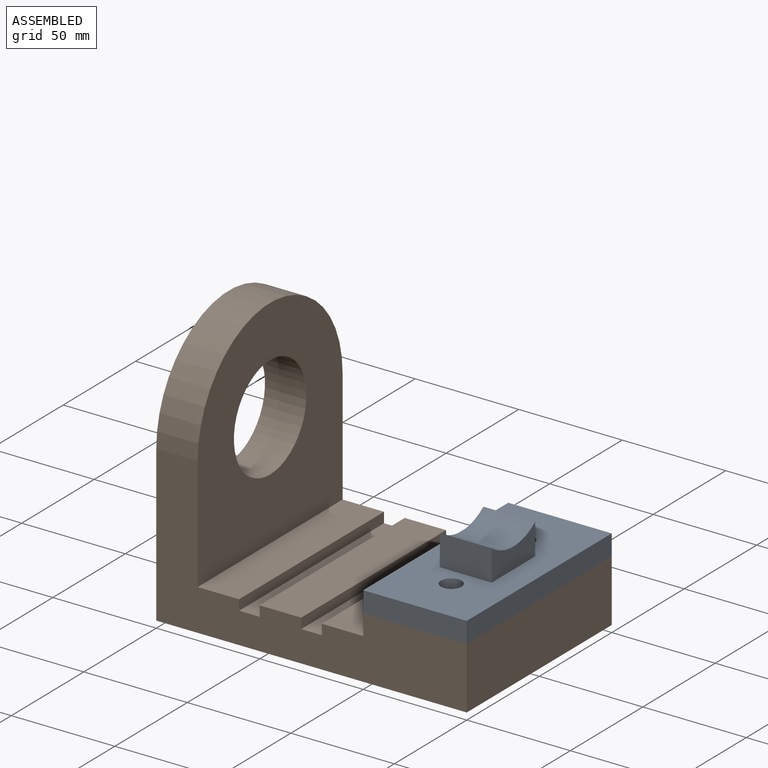
[diagram: assembled view]
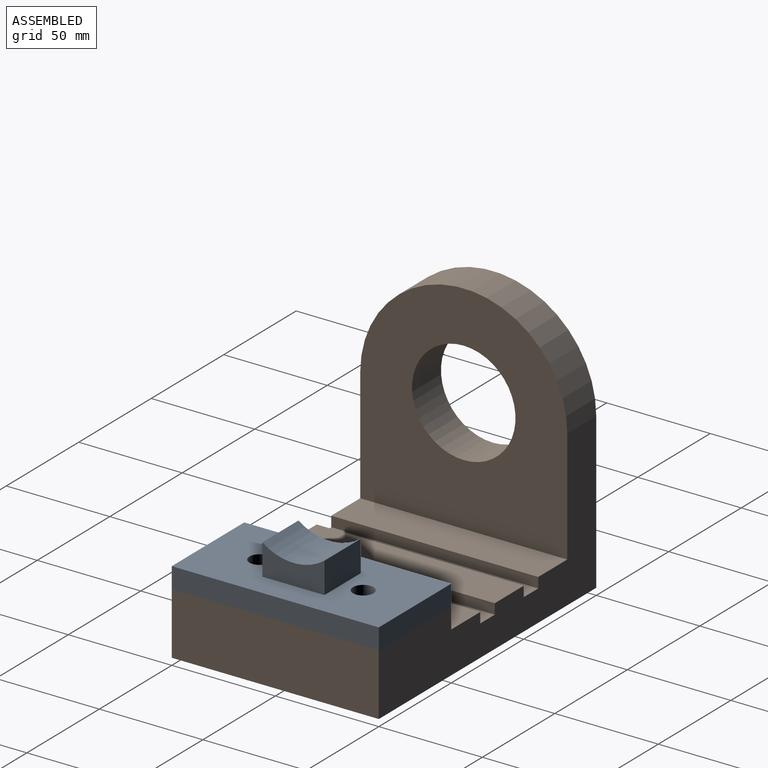
[diagram: assembled view, second angle]
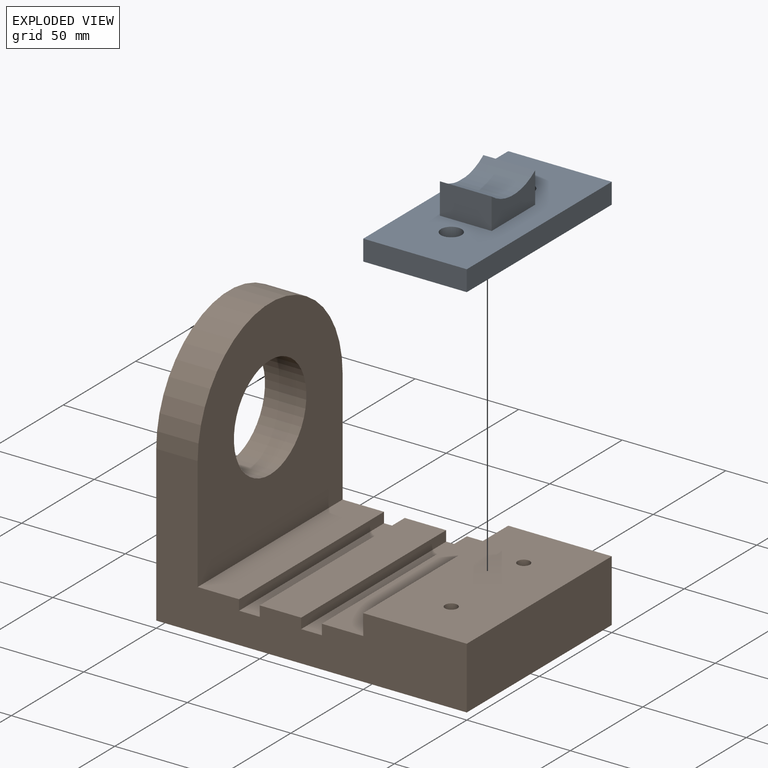
[diagram: exploded view]
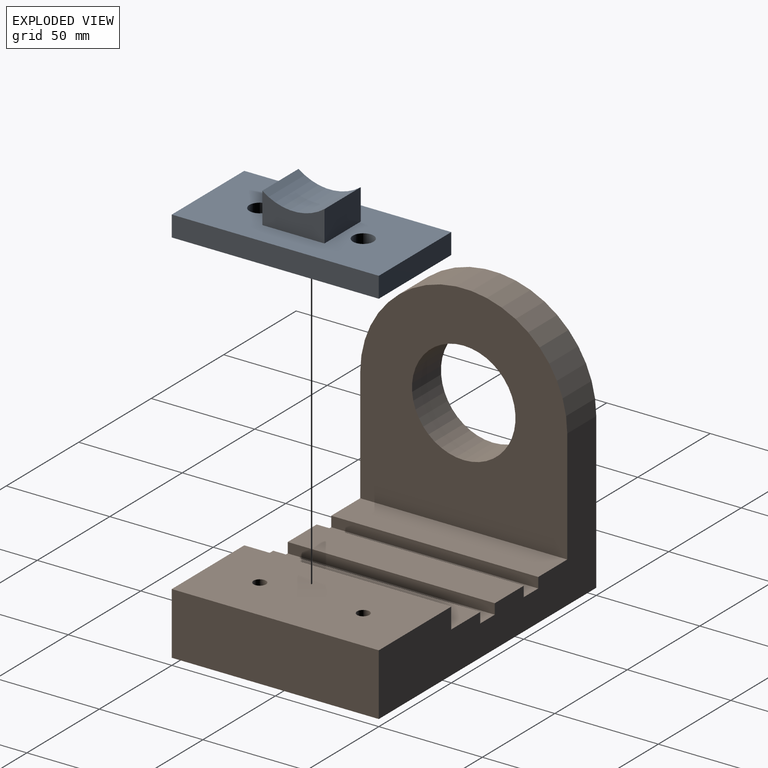
[diagram: exploded view, second angle]
ASSEMBLY  parts=2 mates=2
PART A: 17 faces, bbox 50x100x25 mm
  f0: plane 100x50mm, normal (0,0,1), area 4092.9mm2, adj f1,f2,f3,f4,f8,f11,f13,f14
  f1: plane 50x10mm, normal (0,-1,0), area 500mm2, adj f0,f2,f4,f5
  f2: plane 100x10mm, normal (1,0,0), area 1000mm2, adj f0,f1,f3,f5
  f3: plane 50x10mm, normal (0,1,0), area 500mm2, adj f0,f2,f4,f5
  f4: plane 100x10mm, normal (-1,0,0), area 1000mm2, adj f0,f1,f3,f5
  f5: plane 100x50mm, normal (0,0,-1), area 4943.5mm2, adj f1,f2,f3,f4,f6,f9
  f6: cylinder r=3mm len=6mm, axis (0,0,1), area 94.2mm2, adj f5,f7
  f7: plane 10x10mm, normal (0,0,1), area 50.3mm2, adj f6,f8
  f8: cylinder r=5mm len=10mm, axis (0,0,1), area 157.1mm2, adj f0,f7
  f9: cylinder r=3mm len=6mm, axis (0,0,1), area 94.2mm2, adj f5,f10
  f10: plane 10x10mm, normal (0,0,1), area 50.3mm2, adj f9,f11
  f11: cylinder r=5mm len=10mm, axis (0,0,1), area 157.1mm2, adj f0,f10
  f12: cylinder r=25mm len=30mm, axis (1,0,0), area 804.4mm2, adj f13,f14,f15,f16
  f13: plane 30x15mm, normal (1,0,0), area 347.8mm2, adj f0,f12,f14,f15
  f14: plane 25x15mm, normal (0,-1,0), area 375mm2, adj f0,f12,f13,f16
  f15: plane 25x15mm, normal (0,1,0), area 375mm2, adj f0,f12,f13,f16
  f16: plane 30x15mm, normal (-1,0,0), area 347.8mm2, adj f0,f12,f14,f15
PART B: 23 faces, bbox 150x100x125 mm
  f0: plane 100x20mm, normal (0,0,1), area 2000mm2, adj f2,f7,f8,f20
  f1: plane 100x20mm, normal (0,0,1), area 2000mm2, adj f2,f8,f17,f22
  f2: plane 150x75mm, normal (0,1,0), area 4500mm2, adj f0,f1,f3,f4,f5,f6,f7,f9
  f3: plane 100x20mm, normal (0,0,1), area 2000mm2, adj f2,f8,f11,f19
  f4: plane 125x100mm, normal (-1,0,0), area 9463.5mm2, adj f2,f5,f8,f9,f10
  f5: plane 150x100mm, normal (0,0,-1), area 15000mm2, adj f2,f4,f6,f8
  f6: plane 100x30mm, normal (1,0,0), area 3000mm2, adj f2,f5,f8,f12
  f7: plane 105x100mm, normal (1,0,0), area 7463.5mm2, adj f0,f2,f8,f9,f10
  f8: plane 150x75mm, normal (0,-1,0), area 4500mm2, adj f0,f1,f3,f4,f5,f6,f7,f9
  f9: cylinder r=50mm len=100mm, axis (1,0,0), area 3141.6mm2, adj f2,f4,f7,f8
  f10: cylinder r=25mm len=50mm, axis (1,0,0), area 3141.6mm2, adj f4,f7
  f11: plane 100x10mm, normal (-1,0,0), area 1000mm2, adj f2,f3,f8,f12
  f12: plane 100x50mm, normal (0,0,1), area 4943.5mm2, adj f2,f6,f8,f11,f14,f16
  f13: cone r=0mm half-angle=59deg, axis (0,0,1), area 33mm2, adj f14
  f14: cylinder r=3mm len=12mm, axis (0,0,1), area 226.2mm2, adj f12,f13
  f15: cone r=0mm half-angle=59deg, axis (0,0,1), area 33mm2, adj f16
  f16: cylinder r=3mm len=12mm, axis (0,0,1), area 226.2mm2, adj f12,f15
  f17: plane 100x5mm, normal (1,0,0), area 500mm2, adj f1,f2,f8,f18
  f18: plane 100x10mm, normal (0,0,1), area 1000mm2, adj f2,f8,f17,f19
  f19: plane 100x5mm, normal (-1,0,0), area 500mm2, adj f2,f3,f8,f18
  f20: plane 100x5mm, normal (1,0,0), area 500mm2, adj f0,f2,f8,f21
  f21: plane 100x10mm, normal (0,0,1), area 1000mm2, adj f2,f8,f20,f22
  f22: plane 100x5mm, normal (-1,0,0), area 500mm2, adj f1,f2,f8,f21
PLACE A rot(axis=(0,0,1),180deg) t=(125,0,30)mm
PLACE B at identity fixed
MATE revolute B.f13 <-> A.f6  axis (0,0,1) through (125,25,30)mm
MATE revolute B.f15 <-> A.f9  axis (0,0,1) through (125,-25,30)mm
